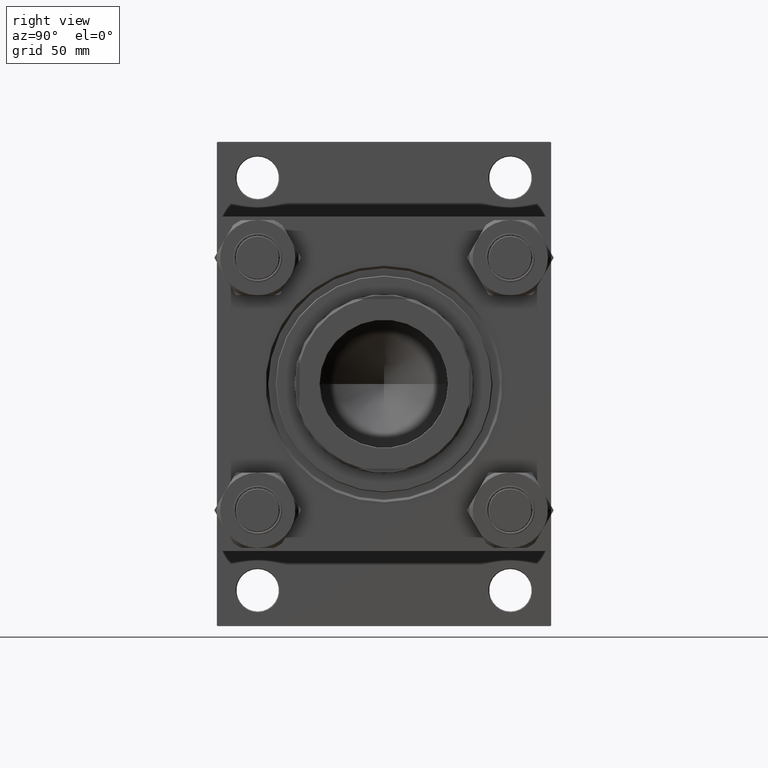
[diagram: clean part render]
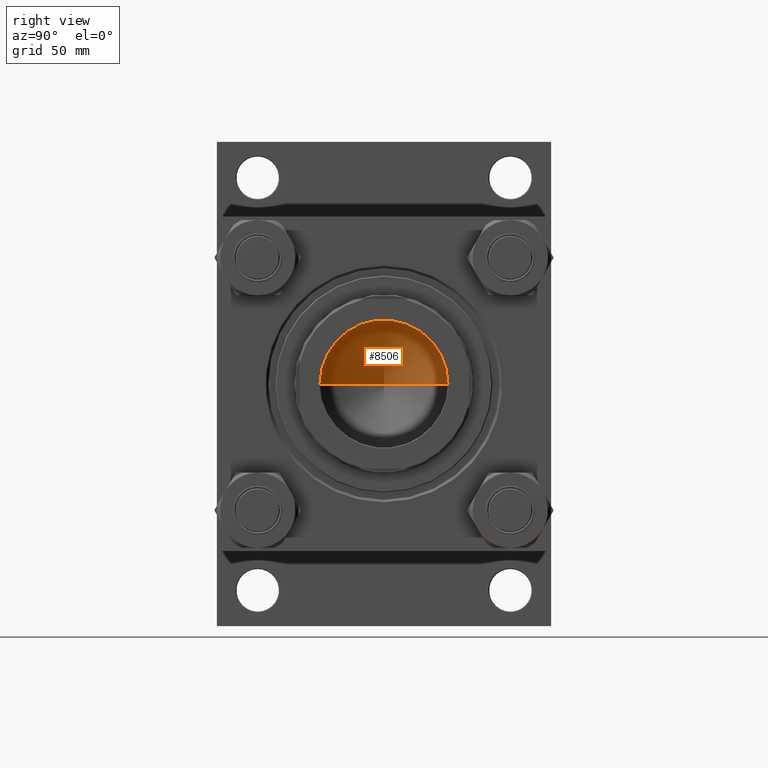
[diagram: same view with one face highlighted and labeled with its STEP entity id]
A machine part, right view. The second image highlights one B-rep face of the part: STEP entity #8506.
In plain terms, the highlighted conical surface has half-angle 59 deg.
Its self-contained STEP definition (entity closure, byte-faithful):
#1024 = VERTEX_POINT ( 'NONE', #44619 ) ;
#1217 = DIRECTION ( 'NONE',  ( 1.000000000000000000, 0.000000000000000000, 0.000000000000000000 ) ) ;
#1631 = CARTESIAN_POINT ( 'NONE',  ( 39.24999999999998579, 0.000000000000000000, 104.9999999999999858 ) ) ;
#3894 = ORIENTED_EDGE ( 'NONE', *, *, #28444, .T. ) ;
#4656 = AXIS2_PLACEMENT_3D ( 'NONE', #36985, #16797, #1217 ) ;
#7632 = CARTESIAN_POINT ( 'NONE',  ( 39.24999999999998579, 0.000000000000000000, 104.9999999999999858 ) ) ;
#8506 = ADVANCED_FACE ( 'NONE', ( #48746 ), #26680, .F. ) ;
#9566 = ORIENTED_EDGE ( 'NONE', *, *, #43409, .F. ) ;
#10263 = CARTESIAN_POINT ( 'NONE',  ( -3.318838890392715616E-14, 0.000000000000000000, 81.41622070316820725 ) ) ;
#10669 = VERTEX_POINT ( 'NONE', #10263 ) ;
#14388 = CARTESIAN_POINT ( 'NONE',  ( -39.24999999999998579, 4.806738686653360087E-15, 104.9999999999999858 ) ) ;
#16146 = AXIS2_PLACEMENT_3D ( 'NONE', #43001, #19503, #23324 ) ;
#16797 = DIRECTION ( 'NONE',  ( -0.000000000000000000, -0.000000000000000000, 1.000000000000000000 ) ) ;
#17450 = DIRECTION ( 'NONE',  ( -0.8571673007021116675, 1.049727191138617833E-16, 0.5150380749100552658 ) ) ;
#19376 = DIRECTION ( 'NONE',  ( 0.8571673007021116675, 0.000000000000000000, 0.5150380749100552658 ) ) ;
#19503 = DIRECTION ( 'NONE',  ( -0.000000000000000000, -0.000000000000000000, 1.000000000000000000 ) ) ;
#23324 = DIRECTION ( 'NONE',  ( 1.000000000000000000, 0.000000000000000000, 0.000000000000000000 ) ) ;
#25068 = CIRCLE ( 'NONE', #16146, 39.24999999999998579 ) ;
#26680 = CONICAL_SURFACE ( 'NONE', #4656, 39.24999999999998579, 1.029744258676653201 ) ;
#28444 = EDGE_CURVE ( 'NONE', #1024, #34612, #25068, .T. ) ;
#28943 = LINE ( 'NONE', #14388, #30123 ) ;
#30123 = VECTOR ( 'NONE', #17450, 1000.000000000000000 ) ;
#34612 = VERTEX_POINT ( 'NONE', #1631 ) ;
#34756 = EDGE_LOOP ( 'NONE', ( #9566, #43170, #3894 ) ) ;
#35231 = EDGE_CURVE ( 'NONE', #10669, #1024, #28943, .T. ) ;
#36985 = CARTESIAN_POINT ( 'NONE',  ( 0.000000000000000000, 0.000000000000000000, 104.9999999999999858 ) ) ;
#37671 = VECTOR ( 'NONE', #19376, 1000.000000000000000 ) ;
#42115 = LINE ( 'NONE', #7632, #37671 ) ;
#43001 = CARTESIAN_POINT ( 'NONE',  ( 0.000000000000000000, 0.000000000000000000, 104.9999999999999858 ) ) ;
#43170 = ORIENTED_EDGE ( 'NONE', *, *, #35231, .T. ) ;
#43409 = EDGE_CURVE ( 'NONE', #10669, #34612, #42115, .T. ) ;
#44619 = CARTESIAN_POINT ( 'NONE',  ( -39.24999999999998579, 4.806738686653360087E-15, 104.9999999999999858 ) ) ;
#48746 = FACE_OUTER_BOUND ( 'NONE', #34756, .T. ) ;